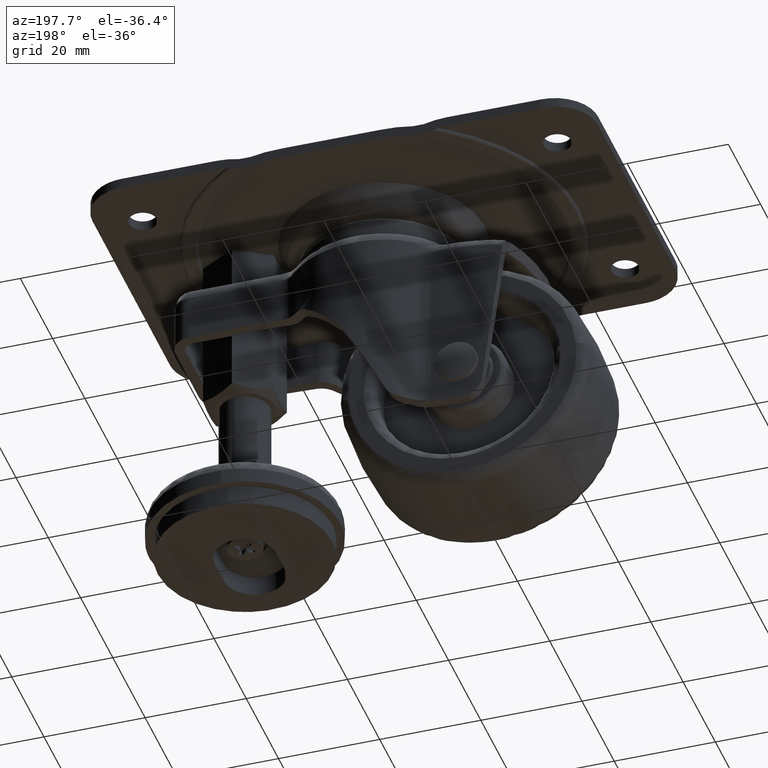
[diagram: clean part render]
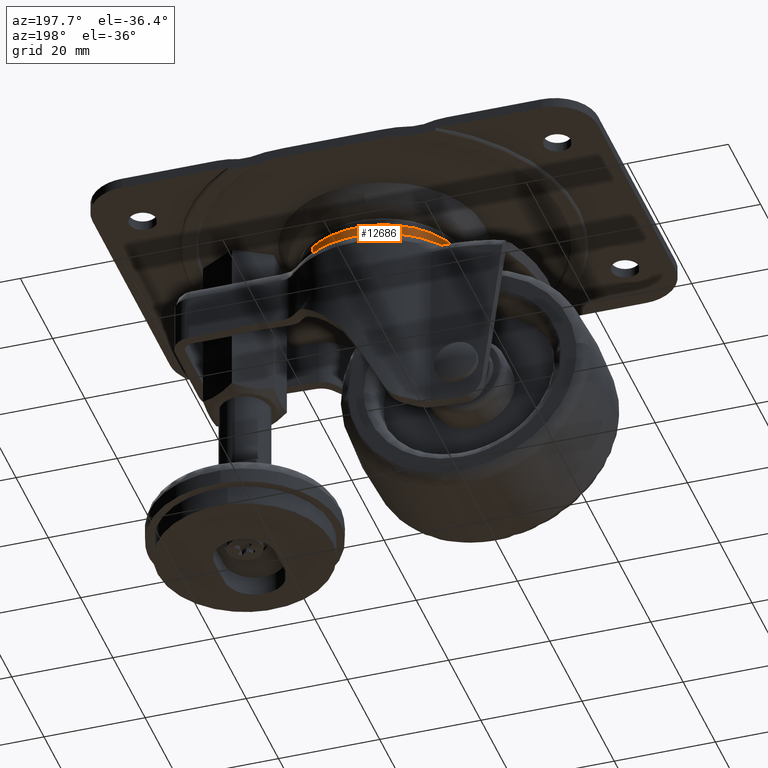
[diagram: same view with one face highlighted and labeled with its STEP entity id]
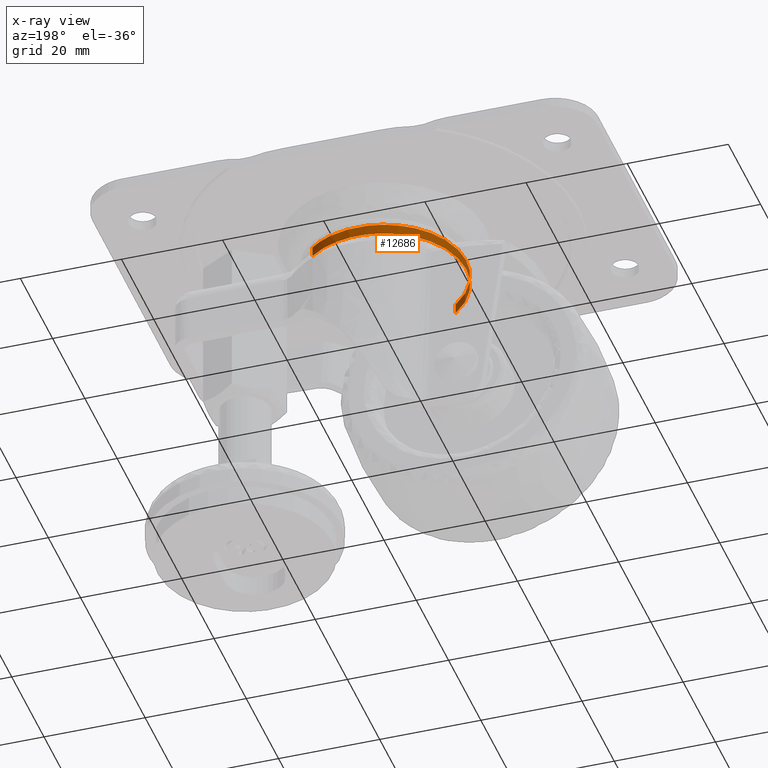
[diagram: x-ray of the same camera — body ghosted, the highlighted face saturated]
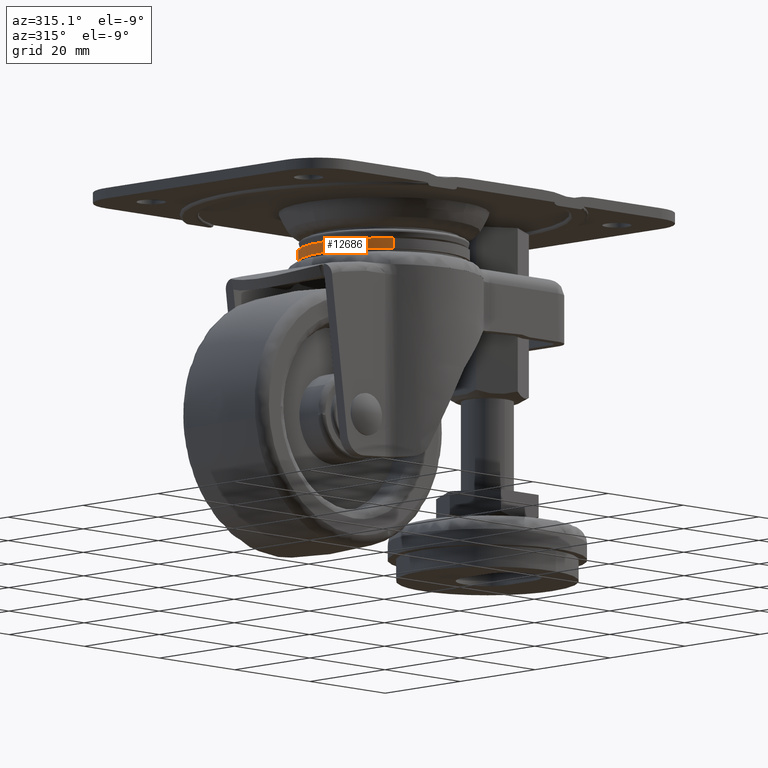
[diagram: same view with one face highlighted and labeled with its STEP entity id]
A machine part, auxiliary view. The second image highlights one B-rep face of the part: STEP entity #12686.
The next image is the same camera in x-ray: the body ghosted, the highlighted face saturated — about 15% of this face is hidden behind the body in this view.
A second angle (auxiliary view) of the same face is appended — the face is thin or edge-on in the first view.
In plain terms, the highlighted face is a freeform B-spline surface patch.
Its self-contained STEP definition (entity closure, byte-faithful):
#12573=CARTESIAN_POINT('',(-10.115862845361320,-12.717382548851720,-9.162957149999999));
#12574=CARTESIAN_POINT('',(-22.833245394213044,-2.601519703490407,-9.162957149999999));
#12575=CARTESIAN_POINT('',(-12.717382548851720,10.115862845361320,-9.162957149999999));
#12576=CARTESIAN_POINT('',(-2.601519703490407,22.833245394213044,-9.162957149999999));
#12577=CARTESIAN_POINT('',(10.115862845361320,12.717382548851720,-9.162957149999999));
#12578=CARTESIAN_POINT('',(-10.115862845361320,-12.717382548851720,-11.292273546250000));
#12579=CARTESIAN_POINT('',(-22.833245394213044,-2.601519703490407,-11.292273546250003));
#12580=CARTESIAN_POINT('',(-12.717382548851720,10.115862845361320,-11.292273546250000));
#12581=CARTESIAN_POINT('',(-2.601519703490407,22.833245394213044,-11.292273546250003));
#12582=CARTESIAN_POINT('',(10.115862845361320,12.717382548851720,-11.292273546250000));
#12590=(BOUNDED_SURFACE()B_SPLINE_SURFACE(2,1,((#12573,#12578),(#12574,#12579),(#12575,#12580),(#12576,#12581),(#12577,#12582)),.UNSPECIFIED.,.F.,.F.,.U.)B_SPLINE_SURFACE_WITH_KNOTS((3,2,3),(2,2),(0.0,26.923881554251171,53.847763108502342),(0.0,2.129316396250005),.UNSPECIFIED.)GEOMETRIC_REPRESENTATION_ITEM()RATIONAL_B_SPLINE_SURFACE(((1.0,1.0),(0.707106781186548,0.707106781186548),(1.0,1.0),(0.707106781186548,0.707106781186548),(1.0,1.0)))REPRESENTATION_ITEM('')SURFACE());
#12591=CARTESIAN_POINT('',(-10.115858334986740,-12.717386136563050,-9.213625000000441));
#12592=VERTEX_POINT('',#12591);
#12593=CARTESIAN_POINT('',(-16.250000000000000,0.0,-9.213625000000000));
#12594=VERTEX_POINT('',#12593);
#12595=CARTESIAN_POINT('',(-10.115858334986740,-12.717386136563054,-9.213625000000441));
#12596=CARTESIAN_POINT('',(-16.250000000000004,-7.838073090339294,-9.213625000000000));
#12597=CARTESIAN_POINT('',(-16.250000000000000,0.0,-9.213625000000000));
#12605=(BOUNDED_CURVE()B_SPLINE_CURVE(2,(#12595,#12596,#12597),.UNSPECIFIED.,.F.,.U.)B_SPLINE_CURVE_WITH_KNOTS((3,3),(0.857863823704517,1.0),.UNSPECIFIED.)CURVE()GEOMETRIC_REPRESENTATION_ITEM()RATIONAL_B_SPLINE_CURVE((0.856305635889384,0.833477111259918,1.0))REPRESENTATION_ITEM(''));
#12606=EDGE_CURVE('',#12592,#12594,#12605,.T.);
#12607=ORIENTED_EDGE('',*,*,#12606,.T.);
#12608=CARTESIAN_POINT('',(-1.918056314638253,16.136404803446741,-9.213625000000306));
#12609=VERTEX_POINT('',#12608);
#12610=CARTESIAN_POINT('',(-16.250000000000000,0.0,-9.213625000000000));
#12611=CARTESIAN_POINT('',(-16.250000000000004,14.432836044113579,-9.213625000000000));
#12612=CARTESIAN_POINT('',(-1.918056314638254,16.136404803446734,-9.213625000000306));
#12620=(BOUNDED_CURVE()B_SPLINE_CURVE(2,(#12610,#12611,#12612),.UNSPECIFIED.,.F.,.U.)B_SPLINE_CURVE_WITH_KNOTS((3,3),(0.0,0.229562473485457),.UNSPECIFIED.)CURVE()GEOMETRIC_REPRESENTATION_ITEM()RATIONAL_B_SPLINE_CURVE((1.0,0.731050832888267,0.956026754128717))REPRESENTATION_ITEM(''));
#12621=EDGE_CURVE('',#12594,#12609,#12620,.T.);
#12622=ORIENTED_EDGE('',*,*,#12621,.T.);
#12623=CARTESIAN_POINT('',(10.115858334986740,12.717386136563050,-9.213625000000441));
#12624=VERTEX_POINT('',#12623);
#12625=CARTESIAN_POINT('',(-1.918056314638254,16.136404803446734,-9.213625000000306));
#12626=CARTESIAN_POINT('',(-0.962391945799924,16.250000000000000,-9.213624999999999));
#12627=CARTESIAN_POINT('',(0.0,16.250000000000000,-9.213625000000000));
#12628=CARTESIAN_POINT('',(5.674750810051655,16.250000000000000,-9.213625000000002));
#12629=CARTESIAN_POINT('',(10.115858334986736,12.717386136563055,-9.213625000000441));
#12637=(BOUNDED_CURVE()B_SPLINE_CURVE(2,(#12625,#12626,#12627,#12628,#12629),.UNSPECIFIED.,.F.,.U.)B_SPLINE_CURVE_WITH_KNOTS((3,2,3),(0.229562473485457,0.250000000000000,0.357863823704517),.UNSPECIFIED.)CURVE()GEOMETRIC_REPRESENTATION_ITEM()RATIONAL_B_SPLINE_CURVE((0.956026754128717,0.976055948298281,1.0,0.873629669926629,0.856305635889384))REPRESENTATION_ITEM(''));
#12638=EDGE_CURVE('',#12609,#12624,#12637,.T.);
#12639=ORIENTED_EDGE('',*,*,#12638,.T.);
#12640=CARTESIAN_POINT('',(10.115858004367940,12.717386399548721,-11.240339000000001));
#12641=VERTEX_POINT('',#12640);
#12642=CARTESIAN_POINT('',(10.115858334986740,12.717386136563050,-9.213625000000441));
#12643=CARTESIAN_POINT('',(10.115858004367940,12.717386399548721,-11.240339000000001));
#12644=QUASI_UNIFORM_CURVE('',1,(#12642,#12643),.UNSPECIFIED.,.F.,.U.);
#12645=EDGE_CURVE('',#12624,#12641,#12644,.T.);
#12646=ORIENTED_EDGE('',*,*,#12645,.T.);
#12647=CARTESIAN_POINT('',(-16.250000000000000,0.0,-11.240339000000001));
#12648=VERTEX_POINT('',#12647);
#12649=CARTESIAN_POINT('',(-16.250000000000000,0.0,-11.240339000000001));
#12650=CARTESIAN_POINT('',(-16.250000000000004,16.250000000000004,-11.240339000000004));
#12651=CARTESIAN_POINT('',(0.0,16.250000000000000,-11.240339000000001));
#12652=CARTESIAN_POINT('',(5.674750573063321,16.250000000000004,-11.240339000000001));
#12653=CARTESIAN_POINT('',(10.115858004367940,12.717386399548721,-11.240339000000004));
#12661=(BOUNDED_CURVE()B_SPLINE_CURVE(2,(#12649,#12650,#12651,#12652,#12653),.UNSPECIFIED.,.F.,.U.)B_SPLINE_CURVE_WITH_KNOTS((3,2,3),(0.0,0.250000000000000,0.357863819769166),.UNSPECIFIED.)CURVE()GEOMETRIC_REPRESENTATION_ITEM()RATIONAL_B_SPLINE_CURVE((1.0,0.707106781186547,1.0,0.873629674537179,0.856305637153499))REPRESENTATION_ITEM(''));
#12662=EDGE_CURVE('',#12648,#12641,#12661,.T.);
#12663=ORIENTED_EDGE('',*,*,#12662,.F.);
#12664=CARTESIAN_POINT('',(-10.115858004367940,-12.717386399548721,-11.240339000000001));
#12665=VERTEX_POINT('',#12664);
#12666=CARTESIAN_POINT('',(-10.115858004367940,-12.717386399548721,-11.240339000000001));
#12667=CARTESIAN_POINT('',(-16.250000000000000,-7.838073350711351,-11.240339000000001));
#12668=CARTESIAN_POINT('',(-16.250000000000000,0.0,-11.240339000000001));
#12676=(BOUNDED_CURVE()B_SPLINE_CURVE(2,(#12666,#12667,#12668),.UNSPECIFIED.,.F.,.U.)B_SPLINE_CURVE_WITH_KNOTS((3,3),(0.857863819769166,1.0),.UNSPECIFIED.)CURVE()GEOMETRIC_REPRESENTATION_ITEM()RATIONAL_B_SPLINE_CURVE((0.856305637153499,0.833477106649369,1.0))REPRESENTATION_ITEM(''));
#12677=EDGE_CURVE('',#12665,#12648,#12676,.T.);
#12678=ORIENTED_EDGE('',*,*,#12677,.F.);
#12679=CARTESIAN_POINT('',(-10.115858334986740,-12.717386136563050,-9.213625000000441));
#12680=CARTESIAN_POINT('',(-10.115858004367940,-12.717386399548721,-11.240339000000001));
#12681=QUASI_UNIFORM_CURVE('',1,(#12679,#12680),.UNSPECIFIED.,.F.,.U.);
#12682=EDGE_CURVE('',#12592,#12665,#12681,.T.);
#12683=ORIENTED_EDGE('',*,*,#12682,.F.);
#12684=EDGE_LOOP('',(#12607,#12622,#12639,#12646,#12663,#12678,#12683));
#12685=FACE_OUTER_BOUND('',#12684,.T.);
#12686=ADVANCED_FACE('',(#12685),#12590,.T.);